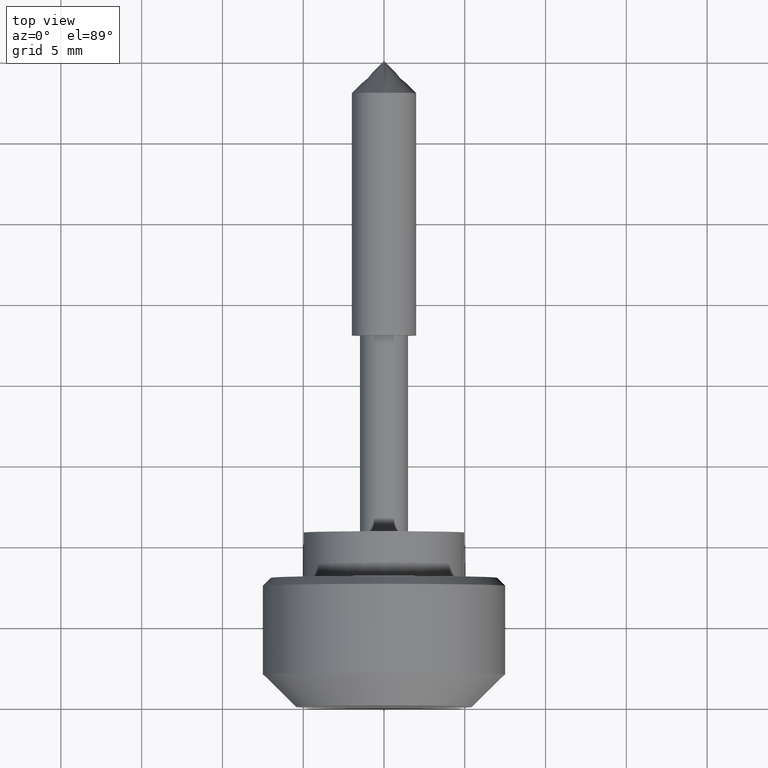
[diagram: clean part render]
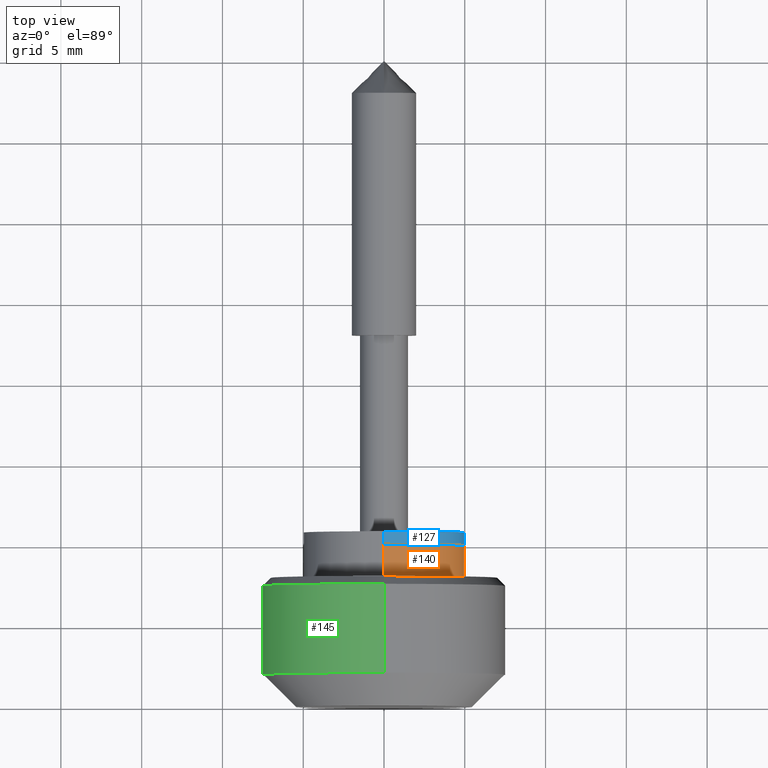
[diagram: same view with three faces highlighted in distinct colors, each labeled with its STEP entity id]
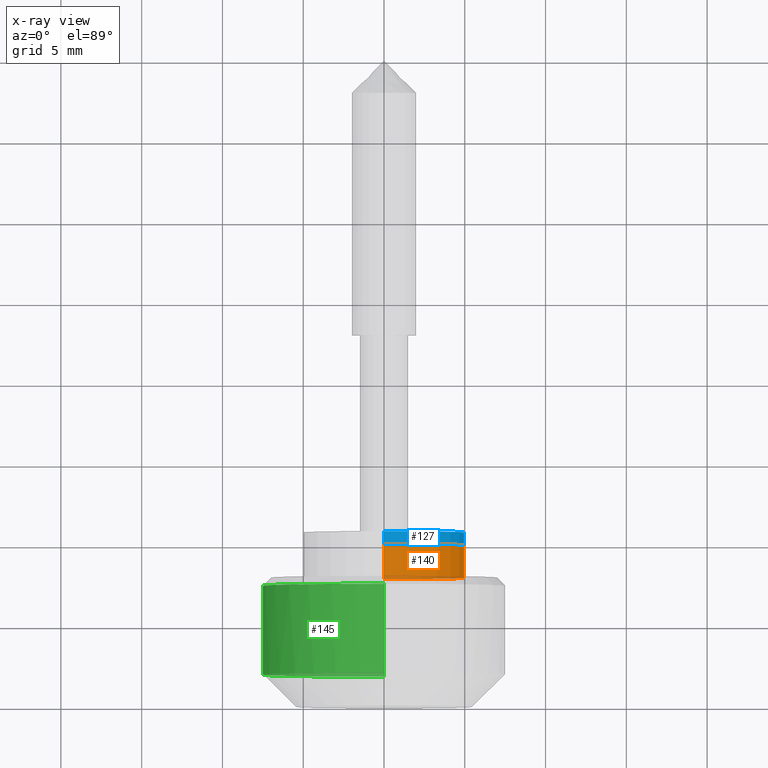
[diagram: x-ray of the same camera — body ghosted, the three highlighted faces saturated]
A machine part, top view with three faces highlighted in distinct colors.
The next image is the same camera in x-ray (body ghosted, the three faces saturated) — at least one of them is partly hidden behind the body in this view.
Their STEP definitions:

[orange] entity #140 — the highlighted cylindrical surface (partial cylindrical patch) has radius 5 mm, axis along (0, -1, -0).
#140=ADVANCED_FACE('',(#436),#435,.T.);
#435=CYLINDRICAL_SURFACE('',#707,5.00000000000E+00);
#436=FACE_OUTER_BOUND('',#708,.T.);
#704=CARTESIAN_POINT('',(-1.00000000000E+03,0.00000000000E+00,0.00000000000E+00));
#705=DIRECTION('',(-1.00000000000E+00,-0.00000000000E+00,-0.00000000000E+00));
#706=DIRECTION('',(0.00000000000E+00,1.22464679915E-16,-1.00000000000E+00));
#707=AXIS2_PLACEMENT_3D('',#704,#705,#706);
#708=EDGE_LOOP('',(#896,#897,#898,#899));
#896=ORIENTED_EDGE('',*,*,#982,.F.);
#897=ORIENTED_EDGE('',*,*,#1012,.F.);
#898=ORIENTED_EDGE('',*,*,#984,.F.);
#899=ORIENTED_EDGE('',*,*,#1013,.T.);
#982=EDGE_CURVE('',#1318,#1319,#1320,.T.);
#984=EDGE_CURVE('',#1332,#1333,#1334,.T.);
#1012=EDGE_CURVE('',#1333,#1318,#1520,.T.);
#1013=EDGE_CURVE('',#1332,#1319,#1526,.T.);
#1318=VERTEX_POINT('',#1773);
#1319=VERTEX_POINT('',#1774);
#1320=CIRCLE('',#1778,5.00000000000E+00);
#1332=VERTEX_POINT('',#1783);
#1333=VERTEX_POINT('',#1784);
#1334=CIRCLE('',#1788,5.00000000000E+00);
#1520=(BOUNDED_CURVE() B_SPLINE_CURVE(1,(#1907,#1908),.UNSPECIFIED.,.F.,.F.) B_SPLINE_CURVE_WITH_KNOTS((2,2),(8.33333134656E-02,9.16666653270E-01),.UNSPECIFIED.) CURVE() GEOMETRIC_REPRESENTATION_ITEM() RATIONAL_B_SPLINE_CURVE((1.00000000000E+00,1.00000000000E+00)) REPRESENTATION_ITEM('') );
#1526=(BOUNDED_CURVE() B_SPLINE_CURVE(1,(#1909,#1910),.UNSPECIFIED.,.F.,.F.) B_SPLINE_CURVE_WITH_KNOTS((2,2),(8.33333333333E-02,9.16666666667E-01),.UNSPECIFIED.) CURVE() GEOMETRIC_REPRESENTATION_ITEM() RATIONAL_B_SPLINE_CURVE((7.50000000000E-01,7.50000000000E-01)) REPRESENTATION_ITEM('') );
#1773=CARTESIAN_POINT('',(-2.00000000000E+00,0.00000000000E+00,-5.00000000000E+00));
#1774=CARTESIAN_POINT('',(-2.00000000000E+00,5.92118946467E-16,5.00000000000E+00));
#1775=CARTESIAN_POINT('',(-2.00000000000E+00,0.00000000000E+00,0.00000000000E+00));
#1776=DIRECTION('',(-1.00000000000E+00,0.00000000000E+00,-0.00000000000E+00));
#1777=DIRECTION('',(0.00000000000E+00,-1.22460635382E-16,-1.00000000000E+00));
#1778=AXIS2_PLACEMENT_3D('',#1775,#1776,#1777);
#1783=CARTESIAN_POINT('',(0.00000000000E+00,0.00000000000E+00,5.00000000000E+00));
#1784=CARTESIAN_POINT('',(0.00000000000E+00,5.92118946467E-16,-5.00000000000E+00));
#1785=CARTESIAN_POINT('',(0.00000000000E+00,0.00000000000E+00,0.00000000000E+00));
#1786=DIRECTION('',(1.00000000000E+00,0.00000000000E+00,-0.00000000000E+00));
#1787=DIRECTION('',(0.00000000000E+00,-1.22460635382E-16,1.00000000000E+00));
#1788=AXIS2_PLACEMENT_3D('',#1785,#1786,#1787);
#1907=CARTESIAN_POINT('',(4.76825537110E-08,6.12323399574E-16,-5.00000000000E+00));
#1908=CARTESIAN_POINT('',(-1.99999996785E+00,6.12323399574E-16,-5.00000000000E+00));
#1909=CARTESIAN_POINT('',(3.70074341542E-17,-2.96059473233E-16,5.00000000000E+00));
#1910=CARTESIAN_POINT('',(-2.00000000000E+00,-2.96059473233E-16,5.00000000000E+00));

[blue] entity #127 — the highlighted cylindrical surface (partial cylindrical patch) has radius 5 mm, axis along (0, 1, 0).
#127=ADVANCED_FACE('',(#303),#302,.T.);
#302=CYLINDRICAL_SURFACE('',#615,5.00000000000E+00);
#303=FACE_OUTER_BOUND('',#616,.T.);
#612=CARTESIAN_POINT('',(0.00000000000E+00,1.00000000000E+03,0.00000000000E+00));
#613=DIRECTION('',(-0.00000000000E+00,1.00000000000E+00,-0.00000000000E+00));
#614=DIRECTION('',(1.22464679915E-16,0.00000000000E+00,-1.00000000000E+00));
#615=AXIS2_PLACEMENT_3D('',#612,#613,#614);
#616=EDGE_LOOP('',(#846,#847,#848,#849));
#846=ORIENTED_EDGE('',*,*,#960,.F.);
#847=ORIENTED_EDGE('',*,*,#978,.T.);
#848=ORIENTED_EDGE('',*,*,#948,.T.);
#849=ORIENTED_EDGE('',*,*,#979,.F.);
#948=EDGE_CURVE('',#1092,#1093,#1094,.T.);
#960=EDGE_CURVE('',#1169,#1168,#1176,.T.);
#978=EDGE_CURVE('',#1169,#1092,#1292,.T.);
#979=EDGE_CURVE('',#1168,#1093,#1298,.T.);
#1092=VERTEX_POINT('',#1637);
#1093=VERTEX_POINT('',#1638);
#1094=CIRCLE('',#1642,5.00000000000E+00);
#1168=VERTEX_POINT('',#1686);
#1169=VERTEX_POINT('',#1687);
#1176=CIRCLE('',#1695,5.00000000000E+00);
#1292=(BOUNDED_CURVE() B_SPLINE_CURVE(1,(#1759,#1760),.UNSPECIFIED.,.F.,.F.) B_SPLINE_CURVE_WITH_KNOTS((2,2),(8.33332935974E-02,9.16666633252E-01),.UNSPECIFIED.) CURVE() GEOMETRIC_REPRESENTATION_ITEM() RATIONAL_B_SPLINE_CURVE((1.00000000000E+00,1.00000000000E+00)) REPRESENTATION_ITEM('') );
#1298=(BOUNDED_CURVE() B_SPLINE_CURVE(1,(#1761,#1762),.UNSPECIFIED.,.F.,.F.) B_SPLINE_CURVE_WITH_KNOTS((2,2),(8.33333333334E-02,9.16666666667E-01),.UNSPECIFIED.) CURVE() GEOMETRIC_REPRESENTATION_ITEM() RATIONAL_B_SPLINE_CURVE((7.50000000000E-01,7.50000000000E-01)) REPRESENTATION_ITEM('') );
#1637=CARTESIAN_POINT('',(5.92118946467E-16,8.00000000000E-01,-5.00000000000E+00));
#1638=CARTESIAN_POINT('',(0.00000000000E+00,8.00000000000E-01,5.00000000000E+00));
#1639=CARTESIAN_POINT('',(0.00000000000E+00,8.00000000000E-01,0.00000000000E+00));
#1640=DIRECTION('',(-0.00000000000E+00,-1.00000000000E+00,0.00000000000E+00));
#1641=DIRECTION('',(-1.22460635382E-16,0.00000000000E+00,1.00000000000E+00));
#1642=AXIS2_PLACEMENT_3D('',#1639,#1640,#1641);
#1686=CARTESIAN_POINT('',(0.00000000000E+00,0.00000000000E+00,5.00000000000E+00));
#1687=CARTESIAN_POINT('',(5.92118946467E-16,0.00000000000E+00,-5.00000000000E+00));
#1692=CARTESIAN_POINT('',(0.00000000000E+00,0.00000000000E+00,0.00000000000E+00));
#1693=DIRECTION('',(-0.00000000000E+00,-1.00000000000E+00,0.00000000000E+00));
#1694=DIRECTION('',(-1.22460635382E-16,0.00000000000E+00,1.00000000000E+00));
#1695=AXIS2_PLACEMENT_3D('',#1692,#1693,#1694);
#1759=CARTESIAN_POINT('',(6.12323399574E-16,-3.81465210669E-08,-5.00000000000E+00));
#1760=CARTESIAN_POINT('',(6.12323399574E-16,7.99999967922E-01,-5.00000000000E+00));
#1761=CARTESIAN_POINT('',(-2.96059473233E-16,0.00000000000E+00,5.00000000000E+00));
#1762=CARTESIAN_POINT('',(-2.96059473233E-16,8.00000000000E-01,5.00000000000E+00));

[green] entity #145 — the highlighted cylindrical surface (partial cylindrical patch) has radius 7.5 mm, axis along (0, -1, -0).
#145=ADVANCED_FACE('',(#486),#485,.T.);
#485=CYLINDRICAL_SURFACE('',#732,7.50000000000E+00);
#486=FACE_OUTER_BOUND('',#733,.T.);
#729=CARTESIAN_POINT('',(-1.00200000000E+03,0.00000000000E+00,0.00000000000E+00));
#730=DIRECTION('',(-1.00000000000E+00,-0.00000000000E+00,-0.00000000000E+00));
#731=DIRECTION('',(0.00000000000E+00,1.22464679915E-16,-1.00000000000E+00));
#732=AXIS2_PLACEMENT_3D('',#729,#730,#731);
#733=EDGE_LOOP('',(#918,#919,#920,#921,#922,#923));
#918=ORIENTED_EDGE('',*,*,#1008,.T.);
#919=ORIENTED_EDGE('',*,*,#1016,.T.);
#920=ORIENTED_EDGE('',*,*,#992,.T.);
#921=ORIENTED_EDGE('',*,*,#998,.T.);
#922=ORIENTED_EDGE('',*,*,#1007,.T.);
#923=ORIENTED_EDGE('',*,*,#1017,.F.);
#992=EDGE_CURVE('',#1388,#1389,#1390,.T.);
#998=EDGE_CURVE('',#1389,#1421,#1429,.T.);
#1007=EDGE_CURVE('',#1421,#1481,#1488,.T.);
#1008=EDGE_CURVE('',#1494,#1495,#1496,.T.);
#1016=EDGE_CURVE('',#1495,#1388,#1544,.T.);
#1017=EDGE_CURVE('',#1494,#1481,#1550,.T.);
#1388=VERTEX_POINT('',#1821);
#1389=VERTEX_POINT('',#1822);
#1390=CIRCLE('',#1826,7.50000000000E+00);
#1421=VERTEX_POINT('',#1843);
#1429=CIRCLE('',#1851,7.50000000000E+00);
#1481=VERTEX_POINT('',#1884);
#1488=CIRCLE('',#1892,7.50000000000E+00);
#1494=VERTEX_POINT('',#1893);
#1495=VERTEX_POINT('',#1894);
#1496=CIRCLE('',#1898,7.50000000000E+00);
#1544=(BOUNDED_CURVE() B_SPLINE_CURVE(1,(#1915,#1916),.UNSPECIFIED.,.F.,.F.) B_SPLINE_CURVE_WITH_KNOTS((2,2),(8.33333283663E-02,9.16666668285E-01),.UNSPECIFIED.) CURVE() GEOMETRIC_REPRESENTATION_ITEM() RATIONAL_B_SPLINE_CURVE((1.00000000000E+00,1.00000000000E+00)) REPRESENTATION_ITEM('') );
#1550=(BOUNDED_CURVE() B_SPLINE_CURVE(1,(#1917,#1918),.UNSPECIFIED.,.F.,.F.) B_SPLINE_CURVE_WITH_KNOTS((2,2),(8.33333333333E-02,9.16666666667E-01),.UNSPECIFIED.) CURVE() GEOMETRIC_REPRESENTATION_ITEM() RATIONAL_B_SPLINE_CURVE((7.50000000000E-01,7.50000000000E-01)) REPRESENTATION_ITEM('') );
#1821=CARTESIAN_POINT('',(-7.99990000000E+00,3.78800559793E-10,-7.50000000000E+00));
#1822=CARTESIAN_POINT('',(-7.99990000000E+00,7.44580418759E+00,-9.00000000000E-01));
#1823=CARTESIAN_POINT('',(-7.99990000000E+00,0.00000000000E+00,0.00000000000E+00));
#1824=DIRECTION('',(1.00000000000E+00,0.00000000000E+00,0.00000000000E+00));
#1825=DIRECTION('',(0.00000000000E+00,-0.00000000000E+00,1.00000000000E+00));
#1826=AXIS2_PLACEMENT_3D('',#1823,#1824,#1825);
#1843=CARTESIAN_POINT('',(-7.99990000000E+00,7.44580418759E+00,9.00000000000E-01));
#1848=CARTESIAN_POINT('',(-7.99990000000E+00,0.00000000000E+00,0.00000000000E+00));
#1849=DIRECTION('',(1.00000000000E+00,0.00000000000E+00,-0.00000000000E+00));
#1850=DIRECTION('',(-0.00000000000E+00,-0.00000000000E+00,-1.00000000000E+00));
#1851=AXIS2_PLACEMENT_3D('',#1848,#1849,#1850);
#1884=CARTESIAN_POINT('',(-7.99990000000E+00,1.86247738732E-06,7.50000000000E+00));
#1889=CARTESIAN_POINT('',(-7.99990000000E+00,0.00000000000E+00,0.00000000000E+00));
#1890=DIRECTION('',(1.00000000000E+00,0.00000000000E+00,-0.00000000000E+00));
#1891=DIRECTION('',(0.00000000000E+00,9.92773891679E-01,1.20000000000E-01));
#1892=AXIS2_PLACEMENT_3D('',#1889,#1890,#1891);
#1893=CARTESIAN_POINT('',(-2.50000000000E+00,1.77635683940E-15,7.50000000000E+00));
#1894=CARTESIAN_POINT('',(-2.50000000000E+00,0.00000000000E+00,-7.50000000000E+00));
#1895=CARTESIAN_POINT('',(-2.50000000000E+00,0.00000000000E+00,0.00000000000E+00));
#1896=DIRECTION('',(-1.00000000000E+00,0.00000000000E+00,-0.00000000000E+00));
#1897=DIRECTION('',(0.00000000000E+00,-1.22460635382E-16,-1.00000000000E+00));
#1898=AXIS2_PLACEMENT_3D('',#1895,#1896,#1897);
#1915=CARTESIAN_POINT('',(-2.49999996722E+00,9.18485099361E-16,-7.50000000000E+00));
#1916=CARTESIAN_POINT('',(-7.99990001068E+00,9.18485099361E-16,-7.50000000000E+00));
#1917=CARTESIAN_POINT('',(-2.50000000000E+00,-8.88178419700E-16,7.50000000000E+00));
#1918=CARTESIAN_POINT('',(-7.99990000000E+00,-8.88178419700E-16,7.50000000000E+00));